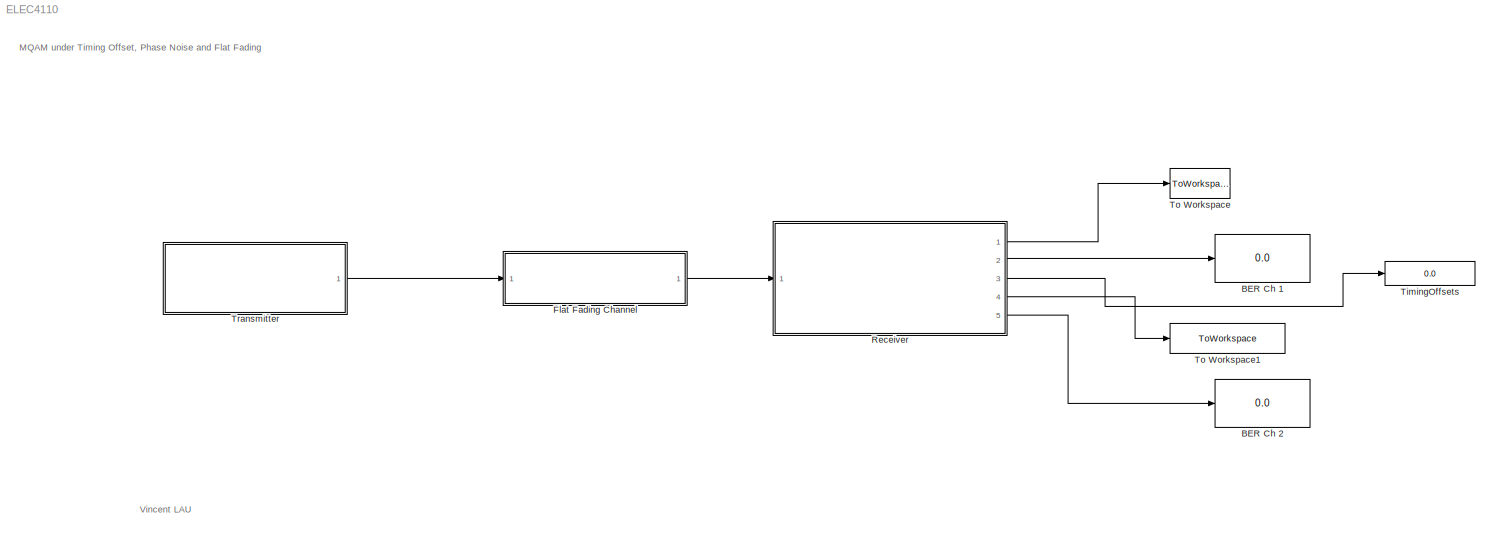
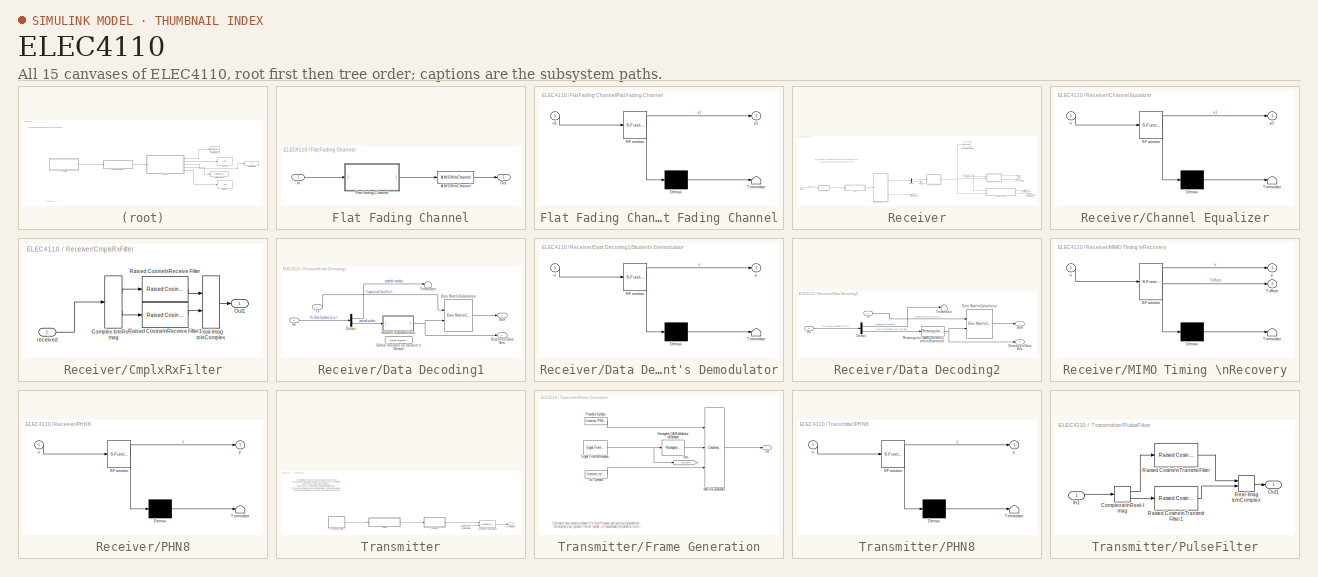
[diagram: thumbnail index - all 15 canvases of the model, root first then tree order]
MODEL ELEC4110
KIND model
CONFIG InitFcn = %qpsktxrx = commqpsktxrx_init();\nELEC4110_Init;
CONFIG PreLoadFcn = qpsktxrx = commqpsktxrx_init();
BLOCK [Display] BER Ch 1
  Decimation = 1
  Ports = [1]
  SID = 3471
BLOCK [Display] BER Ch 2
  Decimation = 1
  Ports = [1]
  SID = 3812
BLOCK [SubSystem] Flat Fading Channel
  Ports = [1, 1]
  RequestExecContextInheritance = off
  SID = 143
BLOCK [Reference] Flat Fading Channel/AWGN\nChannel  REF=commchan3/AWGN\nChannel
  EbNodB = 10
  EsNodB = 10
  InputProcessing = Columns as channels (frame based)
  Ports = [1, 1]
  Ps = 1
  RTWMemSecDataConstants = Inherit from model
  RTWMemSecDataInternal = Inherit from model
  RTWMemSecDataParameters = Inherit from model
  RTWMemSecFuncExecute = Inherit from model
  RTWMemSecFuncInitTerm = Inherit from model
  SID = 2214
  SNRdB = RxSNRdB
  SourceBlock = commchan3/AWGN\nChannel
  SourceProductBaseCode = CM
  SourceType = AWGN Channel
  Tsym = 1
  UserData = DataTag0
  UserDataPersistent = on
  bitsPerSym = 1
  noiseMode = Signal to noise ratio  (SNR)
  seed = 67
  variance = 1
BLOCK [SubSystem] Flat Fading Channel/Flat Fading Channel
  ErrorFcn = Stateflow.Translate.translate
  PermitHierarchicalResolution = ExplicitOnly
  Ports = [1, 1]
  RequestExecContextInheritance = off
  SFBlockType = MATLAB Function
  SID = 1963
  TreatAsAtomicUnit = on
BLOCK [Demux] Flat Fading Channel/Flat Fading Channel/ Demux 
  Outputs = 1
  Ports = [1, 1]
  SID = 1963::42
BLOCK [S-Function] Flat Fading Channel/Flat Fading Channel/ SFunction 
  EnableBusSupport = on
  FunctionName = sf_sfun
  Parameters = H_static
  PortCounts = [1 2]
  Ports = [1, 2]
  SFcnIsStateOwnerBlock = off
  SFunctionDeploymentMode = off
  SID = 1963::41
  Tag = Stateflow S-Function 11
BLOCK [Terminator] Flat Fading Channel/Flat Fading Channel/ Terminator 
  SID = 1963::43
BLOCK [Inport] Flat Fading Channel/Flat Fading Channel/u1
  SID = 1963::1
BLOCK [Outport] Flat Fading Channel/Flat Fading Channel/y1
  SID = 1963::5
  VectorParamsAs1DForOutWhenUnconnected = off
BLOCK [Inport] Flat Fading Channel/In
  SID = 145
BLOCK [Outport] Flat Fading Channel/Out
  SID = 144
  VectorParamsAs1DForOutWhenUnconnected = off
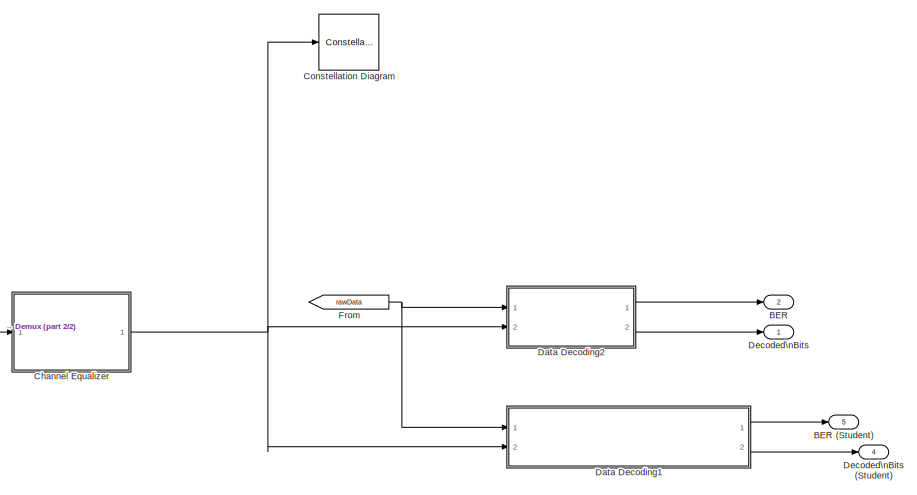
[diagram: Receiver - part 1/2, right side, full height]
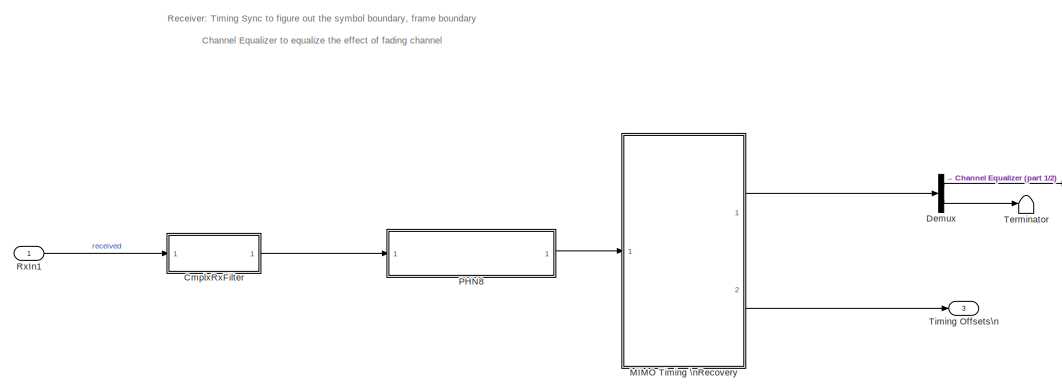
[diagram: Receiver - part 2/2, middle left region]
BLOCK [SubSystem] Receiver
  Ports = [1, 5]
  RequestExecContextInheritance = off
  SID = 1294
  ShowPortLabels = FromPortBlockName
BLOCK [Outport] Receiver/BER
  Port = 2
  SID = 3462
  VectorParamsAs1DForOutWhenUnconnected = off
BLOCK [Outport] Receiver/BER (Student)
  Port = 5
  SID = 3809
  VectorParamsAs1DForOutWhenUnconnected = off
BLOCK [SubSystem] Receiver/Channel Equalizer
  ErrorFcn = Stateflow.Translate.translate
  PermitHierarchicalResolution = ExplicitOnly
  Ports = [1, 1]
  RequestExecContextInheritance = off
  SFBlockType = MATLAB Function
  SID = 2020
  TreatAsAtomicUnit = on
BLOCK [Demux] Receiver/Channel Equalizer/ Demux 
  Outputs = 1
  Ports = [1, 1]
  SID = 2020::42
BLOCK [S-Function] Receiver/Channel Equalizer/ SFunction 
  EnableBusSupport = on
  FunctionName = sf_sfun
  Parameters = H_CSIR,PreambleSize
  PortCounts = [1 2]
  Ports = [1, 2]
  SFcnIsStateOwnerBlock = off
  SFunctionDeploymentMode = off
  SID = 2020::41
  Tag = Stateflow S-Function 20
BLOCK [Terminator] Receiver/Channel Equalizer/ Terminator 
  SID = 2020::43
BLOCK [Inport] Receiver/Channel Equalizer/u
  SID = 2020::1
BLOCK [Outport] Receiver/Channel Equalizer/y1
  SID = 2020::5
  VectorParamsAs1DForOutWhenUnconnected = off
BLOCK [SubSystem] Receiver/CmplxRxFilter
  Ports = [1, 1]
  RequestExecContextInheritance = off
  SID = 2222
BLOCK [ComplexToRealImag] Receiver/CmplxRxFilter/Complex to\nReal-Imag
  Ports = [1, 2]
  SID = 2217
BLOCK [Outport] Receiver/CmplxRxFilter/Out1
  SID = 2224
  VectorParamsAs1DForOutWhenUnconnected = off
BLOCK [Reference] Receiver/CmplxRxFilter/Raised Cosine\nReceive Filter  REF=commfilt2/Raised Cosine\nReceive Filter
  D = 5
  InputProcessing = Columns as channels (frame based)
  LockScale = off
  N = losmimo.Upsampling
  Ports = [1, 1]
  R = losmimo.RolloffFactor
  RTWMemSecDataConstants = Inherit from model
  RTWMemSecDataInternal = Inherit from model
  RTWMemSecDataParameters = Inherit from model
  RTWMemSecFuncExecute = Inherit from model
  RTWMemSecFuncInitTerm = Inherit from model
  RateOptions = Enforce single-rate processing
  SID = 2277
  SourceBlock = commfilt2/Raised Cosine\nReceive Filter
  SourceProductBaseCode = CM
  SourceType = Raised Cosine Receive Filter
  UserData = DataTag1
  UserDataPersistent = on
  accumDataTypeStr = Inherit: Same as product output
  accumFracLength = 30
  accumLastDataTypeStr = Inherit: Same as product output
  accumMode = Same as product output
  accumWordLength = 32
  checkCoeff = off
  checkGain = Normalized
  coeffDataTypeStr = Inherit: Same word length as input
  coeffFracLength = 15
  coeffLastDataTypeStr = Inherit: Same word length as input
  coeffMax = []
  coeffMin = []
  coeffMode = Same word length as input
  coeffWordLength = 16
  currentFiltSpan = 10
  downFactor = losmimo.Decimation
  downOffset = 0
  filtSpan = losmimo.RaisedCosineFilterSpan
  filtType = Square root
  filterGain = 1
  framing = Mute
  inputOffset = 0
  launchFVT = on
  outputDataTypeStr = Inherit: Same as accumulator
  outputFracLength = 15
  outputLastDataTypeStr = Inherit: Same as accumulator
  outputMax = []
  outputMin = []
  outputMode = Same as accumulator
  outputWordLength = 16
  overflowMode = off
  prodOutputDataTypeStr = Inherit: Same as input
  prodOutputFracLength = 30
  prodOutputLastDataTypeStr = Inherit: Same as input
  prodOutputMode = Same as input
  prodOutputWordLength = 32
  rateMode = Downsampling
  roundingMode = Floor
  sampMode = Mute
  saveAsFlag = 0
  variableName = rcRxFilt
BLOCK [Reference] Receiver/CmplxRxFilter/Raised Cosine\nReceive Filter1  REF=commfilt2/Raised Cosine\nReceive Filter
  D = 5
  InputProcessing = Columns as channels (frame based)
  LockScale = off
  N = losmimo.Upsampling
  Ports = [1, 1]
  R = losmimo.RolloffFactor
  RTWMemSecDataConstants = Inherit from model
  RTWMemSecDataInternal = Inherit from model
  RTWMemSecDataParameters = Inherit from model
  RTWMemSecFuncExecute = Inherit from model
  RTWMemSecFuncInitTerm = Inherit from model
  RateOptions = Enforce single-rate processing
  SID = 3001
  SourceBlock = commfilt2/Raised Cosine\nReceive Filter
  SourceProductBaseCode = CM
  SourceType = Raised Cosine Receive Filter
  UserData = DataTag2
  UserDataPersistent = on
  accumDataTypeStr = Inherit: Same as product output
  accumFracLength = 30
  accumLastDataTypeStr = Inherit: Same as product output
  accumMode = Same as product output
  accumWordLength = 32
  checkCoeff = off
  checkGain = Normalized
  coeffDataTypeStr = Inherit: Same word length as input
  coeffFracLength = 15
  coeffLastDataTypeStr = Inherit: Same word length as input
  coeffMax = []
  coeffMin = []
  coeffMode = Same word length as input
  coeffWordLength = 16
  currentFiltSpan = 10
  downFactor = losmimo.Decimation
  downOffset = 0
  filtSpan = losmimo.RaisedCosineFilterSpan
  filtType = Square root
  filterGain = 1
  framing = Mute
  inputOffset = 0
  launchFVT = on
  outputDataTypeStr = Inherit: Same as accumulator
  outputFracLength = 15
  outputLastDataTypeStr = Inherit: Same as accumulator
  outputMax = []
  outputMin = []
  outputMode = Same as accumulator
  outputWordLength = 16
  overflowMode = off
  prodOutputDataTypeStr = Inherit: Same as input
  prodOutputFracLength = 30
  prodOutputLastDataTypeStr = Inherit: Same as input
  prodOutputMode = Same as input
  prodOutputWordLength = 32
  rateMode = Downsampling
  roundingMode = Floor
  sampMode = Mute
  saveAsFlag = 0
  variableName = rcRxFilt1
BLOCK [RealImagToComplex] Receiver/CmplxRxFilter/Real-Imag to\nComplex
  Ports = [2, 1]
  SID = 2218
BLOCK [Inport] Receiver/CmplxRxFilter/received
  SID = 2223
BLOCK [ConstellationDiagram] Receiver/Constellation Diagram
  Ports = [1]
  SID = 3796
  ScopeSpecificationString = comm.scopes.ConstellationDiagramBlockCfg('CurrentConfiguration', extmgr.ConfigurationSet(extmgr.Configuration('Core','General UI',true),extmgr.Configuration('Core','Source UI',true),extmgr.Configuration('Sources','WiredSimulink',true),extmgr.Configuration('Sources','SPTool',false),extmgr.Configuration('Sources','File',false),extmgr.Configuration('Sources','Workspace',false),extmgr.Configuration('S...<+2307ch>
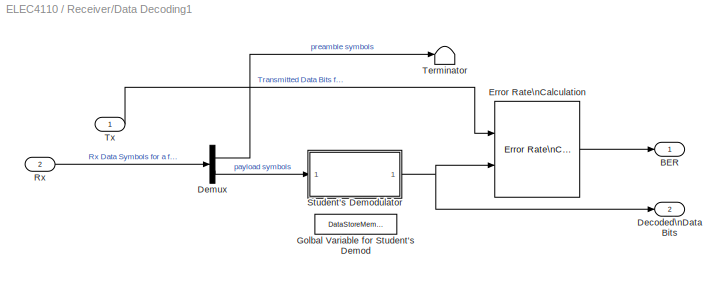
BLOCK [SubSystem] Receiver/Data Decoding1
  NameLocation = top
  Ports = [2, 2]
  RequestExecContextInheritance = off
  SID = 3799
BLOCK [Outport] Receiver/Data Decoding1/BER
  SID = 3806
  VectorParamsAs1DForOutWhenUnconnected = off
BLOCK [Outport] Receiver/Data Decoding1/Decoded\nData Bits
  Port = 2
  SID = 3807
  VectorParamsAs1DForOutWhenUnconnected = off
BLOCK [Demux] Receiver/Data Decoding1/Demux
  Outputs = [[PreambleSize -1]]
  Ports = [1, 2]
  SID = 3802
BLOCK [Reference] Receiver/Data Decoding1/Error Rate\nCalculation  REF=commsink2/Error Rate\nCalculation
  MultiThreadCoSim = auto
  N = 0
  PMode = Port
  Ports = [2, 1]
  RsMode2 = off
  SID = 3803
  SourceBlock = commsink2/Error Rate\nCalculation
  SourceProductBaseCode = CM
  SourceType = Error Rate Calculation
  WsName = ErrorVec
  cp_mode = Entire frame
  maxBits = 1e6
  numErr = 100
  st_delay = 0
  stop = off
  subframe = []
BLOCK [DataStoreMemory] Receiver/Data Decoding1/Golbal Variable for Student's Demod
  DataStoreName = M_level
  OutDataTypeStr = int16
  ReadBeforeWriteMsg = warning
  SID = 3814
  ShowAdditionalParam = off
  SignalType = real
  WriteAfterReadMsg = warning
  WriteAfterWriteMsg = warning
BLOCK [Inport] Receiver/Data Decoding1/Rx
  Port = 2
  SID = 3801
BLOCK [SubSystem] Receiver/Data Decoding1/Student's Demodulator
  ErrorFcn = Stateflow.Translate.translate
  PermitHierarchicalResolution = ExplicitOnly
  Ports = [1, 1]
  RequestExecContextInheritance = off
  SFBlockType = MATLAB Function
  SID = 3810
  TreatAsAtomicUnit = on
BLOCK [Demux] Receiver/Data Decoding1/Student's Demodulator/ Demux 
  Outputs = 1
  Ports = [1, 1]
  SID = 3810::26
BLOCK [S-Function] Receiver/Data Decoding1/Student's Demodulator/ SFunction 
  EnableBusSupport = on
  FunctionName = sf_sfun
  PortCounts = [1 2]
  Ports = [1, 2]
  SFcnIsStateOwnerBlock = off
  SFunctionDeploymentMode = off
  SID = 3810::25
  Tag = Stateflow S-Function 2
BLOCK [Terminator] Receiver/Data Decoding1/Student's Demodulator/ Terminator 
  SID = 3810::27
BLOCK [Inport] Receiver/Data Decoding1/Student's Demodulator/u
  SID = 3810::1
BLOCK [Outport] Receiver/Data Decoding1/Student's Demodulator/y
  SID = 3810::5
  VectorParamsAs1DForOutWhenUnconnected = off
BLOCK [Terminator] Receiver/Data Decoding1/Terminator
  SID = 3805
BLOCK [Inport] Receiver/Data Decoding1/Tx
  SID = 3800
BLOCK [SubSystem] Receiver/Data Decoding2
  NameLocation = top
  Ports = [2, 2]
  RequestExecContextInheritance = off
  SID = 3618
BLOCK [Outport] Receiver/Data Decoding2/BER
  SID = 3624
  VectorParamsAs1DForOutWhenUnconnected = off
BLOCK [Outport] Receiver/Data Decoding2/Decoded\nData Bits
  Port = 2
  SID = 3625
  VectorParamsAs1DForOutWhenUnconnected = off
BLOCK [Demux] Receiver/Data Decoding2/Demux
  Outputs = [[PreambleSize -1]]
  Ports = [1, 2]
  SID = 3659
BLOCK [Reference] Receiver/Data Decoding2/Error Rate\nCalculation  REF=commsink2/Error Rate\nCalculation
  MultiThreadCoSim = auto
  N = 0
  PMode = Port
  Ports = [2, 1]
  RsMode2 = off
  SID = 3622
  SourceBlock = commsink2/Error Rate\nCalculation
  SourceProductBaseCode = CM
  SourceType = Error Rate Calculation
  WsName = ErrorVec
  cp_mode = Entire frame
  maxBits = 1e6
  numErr = 100
  st_delay = 0
  stop = off
  subframe = []
BLOCK [Reference] Receiver/Data Decoding2/Rectangular QAM\nDemodulator\nBaseband  REF=commdigbbndam3/Rectangular QAM\nDemodulator\nBaseband
  AvgPow = 1
  Dec = Gray
  DecType = Hard decision
  M = losmimo.M
  Mapping = [0:15]
  MinDist = 2
  MultiThreadCoSim = auto
  OutType = Bit
  PeakPow = 1
  Ph = 0
  Ports = [1, 1]
  PowType = Average Power
  SID = 3623
  SourceBlock = commdigbbndam3/Rectangular QAM\nDemodulator\nBaseband
  SourceProductBaseCode = CM
  SourceType = Rectangular QAM Demodulator Baseband
  VarSource = Dialog
  Variance = 1
  denormFactorDTMode = Same word length as input
  denormFactorDataTypeStr = Inherit: Same word length as input
  denormFactorLastDataTypeStr = Inherit: Same word length as input
  denormFactorWordLen = 16
  derotateFactorDTMode = Same word length as input
  derotateFactorDataTypeStr = Inherit: Same word length as input
  derotateFactorLastDataTypeStr = Inherit: Same word length as input
  derotateFactorWordLen = 16
  outDtype1 = Inherit via internal rule
  outDtype2 = Inherit via internal rule
  prodOutDTMode = Inherit via internal rule
  prodOutDataTypeStr = Inherit: Inherit via internal rule
  prodOutLastDataTypeStr = Inherit: Inherit via internal rule
  prodOutOvFlMode = off
  prodOutOvFlModeLastStrValue = off
  prodOutOverflowMode = Wrap
  prodOutRoundingMode = Floor
  prodOutWordLen = 32
  sumDTMode = Inherit via internal rule
  sumDataTypeStr = Inherit: Inherit via internal rule
  sumLastDataTypeStr = Inherit: Inherit via internal rule
  sumWordLen = 32
BLOCK [Inport] Receiver/Data Decoding2/Rx
  Port = 2
  SID = 3620
BLOCK [Terminator] Receiver/Data Decoding2/Terminator
  SID = 3660
BLOCK [Inport] Receiver/Data Decoding2/Tx
  SID = 3619
BLOCK [Outport] Receiver/Decoded\nBits
  SID = 2646
  VectorParamsAs1DForOutWhenUnconnected = off
BLOCK [Outport] Receiver/Decoded\nBits (Student)
  Port = 4
  SID = 3808
  VectorParamsAs1DForOutWhenUnconnected = off
BLOCK [Demux] Receiver/Demux
  Outputs = [TotalDataPreambleSize -1]
  Ports = [1, 2]
  SID = 3658
BLOCK [From] Receiver/From
  GotoTag = rawData
  SID = 2919
  TagVisibility = global
BLOCK [SubSystem] Receiver/MIMO Timing \nRecovery
  ErrorFcn = Stateflow.Translate.translate
  PermitHierarchicalResolution = ExplicitOnly
  Ports = [1, 2]
  RequestExecContextInheritance = off
  SFBlockType = MATLAB Function
  SID = 3542
  TreatAsAtomicUnit = on
BLOCK [Demux] Receiver/MIMO Timing \nRecovery/ Demux 
  Outputs = 1
  Ports = [1, 1]
  SID = 3542::47
BLOCK [S-Function] Receiver/MIMO Timing \nRecovery/ SFunction 
  EnableBusSupport = on
  FunctionName = sf_sfun
  Parameters = TotalDataPreambleSize,TxPreamble,maxTOffset,numInterpRx,numSampPerSym
  PortCounts = [1 3]
  Ports = [1, 3]
  SFcnIsStateOwnerBlock = off
  SFunctionDeploymentMode = off
  SID = 3542::46
  Tag = Stateflow S-Function 21
BLOCK [Terminator] Receiver/MIMO Timing \nRecovery/ Terminator 
  SID = 3542::48
BLOCK [Outport] Receiver/MIMO Timing \nRecovery/Toffset
  Port = 2
  SID = 3542::43
  VectorParamsAs1DForOutWhenUnconnected = off
BLOCK [Inport] Receiver/MIMO Timing \nRecovery/u
  SID = 3542::1
BLOCK [Outport] Receiver/MIMO Timing \nRecovery/y
  SID = 3542::5
  VectorParamsAs1DForOutWhenUnconnected = off
BLOCK [SubSystem] Receiver/PHN8
  ErrorFcn = Stateflow.Translate.translate
  PermitHierarchicalResolution = ExplicitOnly
  Ports = [1, 1]
  RequestExecContextInheritance = off
  SFBlockType = MATLAB Function
  SID = 2512
  TreatAsAtomicUnit = on
BLOCK [Demux] Receiver/PHN8/ Demux 
  Outputs = 1
  Ports = [1, 1]
  SID = 2512::27
BLOCK [S-Function] Receiver/PHN8/ SFunction 
  EnableBusSupport = on
  FunctionName = sf_sfun
  Parameters = sigma_PHN
  PortCounts = [1 2]
  Ports = [1, 2]
  SFcnIsStateOwnerBlock = off
  SFunctionDeploymentMode = off
  SID = 2512::26
  Tag = Stateflow S-Function 10
BLOCK [Terminator] Receiver/PHN8/ Terminator 
  SID = 2512::28
BLOCK [Inport] Receiver/PHN8/u
  SID = 2512::1
BLOCK [Outport] Receiver/PHN8/y
  SID = 2512::5
  VectorParamsAs1DForOutWhenUnconnected = off
BLOCK [Inport] Receiver/RxIn1
  SID = 1311
BLOCK [Terminator] Receiver/Terminator
  SID = 3731
BLOCK [Outport] Receiver/Timing Offsets\n
  Port = 3
  SID = 3797
  VectorParamsAs1DForOutWhenUnconnected = off
BLOCK [Display] TimingOffsets
  Decimation = 1
  Ports = [1]
  SID = 3798
BLOCK [ToWorkspace] To Workspace
  FixptAsFi = on
  MaxDataPoints = inf
  Ports = [1]
  SID = 3476
  SampleTime = -1
  SaveFormat = Structure
  VariableName = rxBits
BLOCK [ToWorkspace] To Workspace1
  FixptAsFi = on
  MaxDataPoints = inf
  Ports = [1]
  SID = 3811
  SampleTime = -1
  SaveFormat = Structure
  VariableName = rxBits_student
BLOCK [SubSystem] Transmitter
  Ports = [0, 1]
  RequestExecContextInheritance = off
  SID = 1291
BLOCK [SubSystem] Transmitter/Frame Generation
  Ports = [0, 1]
  RequestExecContextInheritance = off
  SID = 2054
BLOCK [Goto] Transmitter/Frame Generation/Goto
  GotoTag = rawData
  SID = 2920
  TagVisibility = global
BLOCK [Concatenate] Transmitter/Frame Generation/Matrix\nConcatenate
  Mode = Multidimensional array
  NumInputs = 3
  Ports = [3, 1]
  SID = 2058
BLOCK [Outport] Transmitter/Frame Generation/Out
  SID = 2062
  VectorParamsAs1DForOutWhenUnconnected = off
BLOCK [Constant] Transmitter/Frame Generation/Preamble Symbols
  OutDataTypeStr = double
  SID = 3484
  Value = losmimo.PNSymbols.'
  VectorParams1D = off
BLOCK [Reference] Transmitter/Frame Generation/Rectangular QAM\nModulator\nBaseband  REF=commdigbbndam3/Rectangular QAM\nModulator\nBaseband
  AvgPow = 1
  Enc = Gray
  InType = Bit
  M = losmimo.M
  Mapping = [0:15]
  MinDist = 2
  MultiThreadCoSim = auto
  PeakPow = 1
  Ph = 0
  Ports = [1, 1]
  PowType = Average Power
  SID = 3054
  SourceBlock = commdigbbndam3/Rectangular QAM\nModulator\nBaseband
  SourceProductBaseCode = CM
  SourceType = Rectangular QAM Modulator Baseband
  outDataTypeStr = double
  outDtype = double
  outFracLen = 15
  outFracLenMode = Best precision
  outLastDataTypeStr = double
  outUDDataType = sfix(16)
  outWordLen = 16
BLOCK [Reference] Transmitter/Frame Generation/Signal From\nWorkspace  REF=dspsrcs4/Signal From\nWorkspace
  OutputAfterFinalValue = Cyclic repetition
  OutputFrames = off
  Ports = [0, 1]
  RTWMemSecDataConstants = Inherit from model
  RTWMemSecDataInternal = Inherit from model
  RTWMemSecDataParameters = Inherit from model
  RTWMemSecFuncExecute = Inherit from model
  RTWMemSecFuncInitTerm = Inherit from model
  SID = 2061
  SourceBlock = dspsrcs4/Signal From\nWorkspace
  SourceProductBaseCode = DS
  SourceType = Signal From Workspace
  Ts = 1/losmimo.DataLength*losmimo.FrameTime
  X = losmimo.sBit
  ignoreOrWarnInputAndFrameLengths = off
  nsamps = losmimo.DataLength
BLOCK [Constant] Transmitter/Frame Generation/Tail Symbols
  OutDataTypeStr = double
  SID = 3732
  Value = losmimo.tailSym'
  VectorParams1D = off
BLOCK [SubSystem] Transmitter/PHN8
  ErrorFcn = Stateflow.Translate.translate
  PermitHierarchicalResolution = ExplicitOnly
  Ports = [1, 1]
  RequestExecContextInheritance = off
  SFBlockType = MATLAB Function
  SID = 2656
  TreatAsAtomicUnit = on
BLOCK [Demux] Transmitter/PHN8/ Demux 
  Outputs = 1
  Ports = [1, 1]
  SID = 2656::27
BLOCK [S-Function] Transmitter/PHN8/ SFunction 
  EnableBusSupport = on
  FunctionName = sf_sfun
  Parameters = sigma_PHN
  PortCounts = [1 2]
  Ports = [1, 2]
  SFcnIsStateOwnerBlock = off
  SFunctionDeploymentMode = off
  SID = 2656::26
  Tag = Stateflow S-Function 3
BLOCK [Terminator] Transmitter/PHN8/ Terminator 
  SID = 2656::28
BLOCK [Inport] Transmitter/PHN8/u
  SID = 2656::1
BLOCK [Outport] Transmitter/PHN8/y
  SID = 2656::5
  VectorParamsAs1DForOutWhenUnconnected = off
BLOCK [SubSystem] Transmitter/PulseFilter
  Ports = [1, 1]
  RequestExecContextInheritance = off
  SID = 2161
BLOCK [ComplexToRealImag] Transmitter/PulseFilter/Complex to\nReal-Imag
  Ports = [1, 2]
  SID = 2158
BLOCK [Inport] Transmitter/PulseFilter/In1
  SID = 2162
BLOCK [Outport] Transmitter/PulseFilter/Out1
  SID = 2163
  VectorParamsAs1DForOutWhenUnconnected = off
BLOCK [Reference] Transmitter/PulseFilter/Raised Cosine\nTransmit Filter  REF=commfilt2/Raised Cosine\nTransmit Filter
  D = 5
  InputProcessing = Columns as channels (frame based)
  LockScale = off
  N = losmimo.Upsampling
  Ports = [1, 1]
  R = losmimo.RolloffFactor
  RTWMemSecDataConstants = Inherit from model
  RTWMemSecDataInternal = Inherit from model
  RTWMemSecDataParameters = Inherit from model
  RTWMemSecFuncExecute = Inherit from model
  RTWMemSecFuncInitTerm = Inherit from model
  RateOptions = Enforce single-rate processing
  SID = 2657
  SourceBlock = commfilt2/Raised Cosine\nTransmit Filter
  SourceProductBaseCode = CM
  SourceType = Raised Cosine Transmit Filter
  UserData = DataTag3
  UserDataPersistent = on
  accumDataTypeStr = Inherit: Inherit via internal rule
  accumFracLength = 30
  accumLastDataTypeStr = Inherit: Inherit via internal rule
  accumMode = Inherit via internal rule
  accumWordLength = 32
  checkCoeff = off
  checkGain = Normalized
  coeffDataTypeStr = Inherit: Same word length as input
  coeffFracLength = 15
  coeffLastDataTypeStr = Inherit: Same word length as input
  coeffMax = []
  coeffMin = []
  coeffMode = Same word length as input
  coeffWordLength = 16
  currentFiltSpan = 10
  filtSpan = losmimo.RaisedCosineFilterSpan
  filtType = Square root
  filterGain = 1
  framing = Mute
  launchFVT = on
  outputDataTypeStr = Inherit: Same as accumulator
  outputFracLength = 15
  outputLastDataTypeStr = Inherit: Same as accumulator
  outputMax = []
  outputMin = []
  outputMode = Same as accumulator
  outputWordLength = 16
  overflowMode = off
  prodOutputDataTypeStr = Inherit: Inherit via internal rule
  prodOutputFracLength = 30
  prodOutputLastDataTypeStr = Inherit: Inherit via internal rule
  prodOutputMode = Inherit via internal rule
  prodOutputWordLength = 32
  roundingMode = Floor
  sampMode = Mute
  saveAsFlag = 0
  variableName = rcTxFilt1
BLOCK [Reference] Transmitter/PulseFilter/Raised Cosine\nTransmit Filter1  REF=commfilt2/Raised Cosine\nTransmit Filter
  D = 5
  InputProcessing = Columns as channels (frame based)
  LockScale = off
  N = losmimo.Upsampling
  Ports = [1, 1]
  R = losmimo.RolloffFactor
  RTWMemSecDataConstants = Inherit from model
  RTWMemSecDataInternal = Inherit from model
  RTWMemSecDataParameters = Inherit from model
  RTWMemSecFuncExecute = Inherit from model
  RTWMemSecFuncInitTerm = Inherit from model
  RateOptions = Enforce single-rate processing
  SID = 2709
  SourceBlock = commfilt2/Raised Cosine\nTransmit Filter
  SourceProductBaseCode = CM
  SourceType = Raised Cosine Transmit Filter
  UserData = DataTag4
  UserDataPersistent = on
  accumDataTypeStr = Inherit: Inherit via internal rule
  accumFracLength = 30
  accumLastDataTypeStr = Inherit: Inherit via internal rule
  accumMode = Inherit via internal rule
  accumWordLength = 32
  checkCoeff = off
  checkGain = Normalized
  coeffDataTypeStr = Inherit: Same word length as input
  coeffFracLength = 15
  coeffLastDataTypeStr = Inherit: Same word length as input
  coeffMax = []
  coeffMin = []
  coeffMode = Same word length as input
  coeffWordLength = 16
  currentFiltSpan = 10
  filtSpan = losmimo.RaisedCosineFilterSpan
  filtType = Square root
  filterGain = 1
  framing = Mute
  launchFVT = on
  outputDataTypeStr = Inherit: Same as accumulator
  outputFracLength = 15
  outputLastDataTypeStr = Inherit: Same as accumulator
  outputMax = []
  outputMin = []
  outputMode = Same as accumulator
  outputWordLength = 16
  overflowMode = off
  prodOutputDataTypeStr = Inherit: Inherit via internal rule
  prodOutputFracLength = 30
  prodOutputLastDataTypeStr = Inherit: Inherit via internal rule
  prodOutputMode = Inherit via internal rule
  prodOutputWordLength = 32
  roundingMode = Floor
  sampMode = Mute
  saveAsFlag = 0
  variableName = rcTxFilt1
BLOCK [RealImagToComplex] Transmitter/PulseFilter/Real-Imag to\nComplex
  Ports = [2, 1]
  SID = 2160
BLOCK [Outport] Transmitter/Tx Ant Output1
  NameLocation = top
  SID = 1436
  VectorParamsAs1DForOutWhenUnconnected = off
BLOCK [Constant] Transmitter/Tx Timing Offset8
  SID = 3474
  Value = losmimo.TxTimingOffset(1)
BLOCK [Reference] Transmitter/Variable\nFractional Delay8  REF=dspsigops/Variable\nFractional Delay
  FarrowL = 3
  InputProcessing = Columns as channels (frame based)
  L = 4
  LockScale = off
  MultiThreadCoSim = auto
  Ports = [2, 1]
  R = 50
  SID = 3475
  SourceBlock = dspsigops/Variable\nFractional Delay
  SourceProductBaseCode = DS
  SourceType = Variable Fractional Delay
  UserData = DataTag5
  UserDataPersistent = on
  accumFracLength = 10
  accumMode = Same as product output
  accumWordLength = 32
  alpha = 1
  dmax = 20
  fallbackFIR = Clip to the minimum value necessary for centered kernel
  fallbackFarrow = Clip to the minimum value necessary for centered kernel
  firstCoeffFracLength = 0
  firstCoeffMode = Same word length as input
  firstCoeffWordLength = 32
  ic = 0
  interProdFracLength = 10
  interProdMode = Same as first input
  interProdWordLength = 32
  memoryFracLength = 10
  memoryMode = Same as first input
  memoryWordLength = 32
  mode = OBSOLETE
  modeActive = Farrow
  noDFT = off
  outputFracLength = 10
  outputMode = Same as accumulator
  outputWordLength = 32
  overflowMode = off
  prodOutputFracLength = 10
  prodOutputMode = Same as first input
  prodOutputWordLength = 32
  roundingMode = Zero
  secondCoeffFracLength = 10
  secondCoeffMode = Same as first input
  secondCoeffWordLength = 32
ANNOTATION (root): \n \n Vincent LAU
ANNOTATION (root): MQAM under Timing Offset, Phase Noise and Flat Fading
ANNOTATION Receiver: \n \n Receiver: Timing Sync to figure out the symbol boundary, frame boundary \n Channel Equalizer to equalize the effect of fading channel \n Data Decoding --> perform demodulation and compute BER
ANNOTATION Transmitter: Transmitter: It generates one frame each time. A frame consists of\n a preamble (length defined by losmimo.SeqLength) for synchronization +\n data symbols (length = DataFrameSize) + \nTail symbols (for continuity of the frame in modeling time delays) \nThe frame of symbols is then mapped into modulation symbols via the pulse filter (up converted to samples). \nFinally, we add in artifical delays (...<+67ch>
ANNOTATION Transmitter/Frame Generation: Each data frame contains a header (For Sync Purpose) and losmimo.DataLength bits data bits, \nfollowed by a tail symbols The tail symbol is to accomodate the potential timing offset at the Tx and Rx filters
LINE Flat Fading Channel/AWGN\nChannel:1 -> Flat Fading Channel/Out:1
LINE Flat Fading Channel/Flat Fading Channel/ Demux :1 -> Flat Fading Channel/Flat Fading Channel/ Terminator :1
LINE Flat Fading Channel/Flat Fading Channel/ SFunction :1 -> Flat Fading Channel/Flat Fading Channel/ Demux :1
LINE Flat Fading Channel/Flat Fading Channel/ SFunction :2 -> Flat Fading Channel/Flat Fading Channel/y1:1
LINE Flat Fading Channel/Flat Fading Channel/u1:1 -> Flat Fading Channel/Flat Fading Channel/ SFunction :1
LINE Flat Fading Channel/Flat Fading Channel:1 -> Flat Fading Channel/AWGN\nChannel:1
LINE Flat Fading Channel/In:1 -> Flat Fading Channel/Flat Fading Channel:1
LINE Flat Fading Channel:1 -> Receiver:1
LINE Receiver/Channel Equalizer/ Demux :1 -> Receiver/Channel Equalizer/ Terminator :1
LINE Receiver/Channel Equalizer/ SFunction :1 -> Receiver/Channel Equalizer/ Demux :1
LINE Receiver/Channel Equalizer/ SFunction :2 -> Receiver/Channel Equalizer/y1:1
LINE Receiver/Channel Equalizer/u:1 -> Receiver/Channel Equalizer/ SFunction :1
NET Receiver/Channel Equalizer:1 -> Receiver/Constellation Diagram:1, Receiver/Data Decoding1:2, Receiver/Data Decoding2:2
LINE Receiver/CmplxRxFilter/Complex to\nReal-Imag:1 -> Receiver/CmplxRxFilter/Raised Cosine\nReceive Filter:1
LINE Receiver/CmplxRxFilter/Complex to\nReal-Imag:2 -> Receiver/CmplxRxFilter/Raised Cosine\nReceive Filter1:1
LINE Receiver/CmplxRxFilter/Raised Cosine\nReceive Filter1:1 -> Receiver/CmplxRxFilter/Real-Imag to\nComplex:2
LINE Receiver/CmplxRxFilter/Raised Cosine\nReceive Filter:1 -> Receiver/CmplxRxFilter/Real-Imag to\nComplex:1
LINE Receiver/CmplxRxFilter/Real-Imag to\nComplex:1 -> Receiver/CmplxRxFilter/Out1:1
LINE Receiver/CmplxRxFilter/received:1 -> Receiver/CmplxRxFilter/Complex to\nReal-Imag:1
LINE Receiver/CmplxRxFilter:1 -> Receiver/PHN8:1
LINE Receiver/Data Decoding1/Demux:1 -> Receiver/Data Decoding1/Terminator:1
LINE Receiver/Data Decoding1/Demux:2 -> Receiver/Data Decoding1/Student's Demodulator:1
LINE Receiver/Data Decoding1/Error Rate\nCalculation:1 -> Receiver/Data Decoding1/BER:1
LINE Receiver/Data Decoding1/Rx:1 -> Receiver/Data Decoding1/Demux:1
LINE Receiver/Data Decoding1/Student's Demodulator/ Demux :1 -> Receiver/Data Decoding1/Student's Demodulator/ Terminator :1
LINE Receiver/Data Decoding1/Student's Demodulator/ SFunction :1 -> Receiver/Data Decoding1/Student's Demodulator/ Demux :1
LINE Receiver/Data Decoding1/Student's Demodulator/ SFunction :2 -> Receiver/Data Decoding1/Student's Demodulator/y:1
LINE Receiver/Data Decoding1/Student's Demodulator/u:1 -> Receiver/Data Decoding1/Student's Demodulator/ SFunction :1
NET Receiver/Data Decoding1/Student's Demodulator:1 -> Receiver/Data Decoding1/Decoded\nData Bits:1, Receiver/Data Decoding1/Error Rate\nCalculation:2
LINE Receiver/Data Decoding1/Tx:1 -> Receiver/Data Decoding1/Error Rate\nCalculation:1
LINE Receiver/Data Decoding1:1 -> Receiver/BER (Student):1
LINE Receiver/Data Decoding1:2 -> Receiver/Decoded\nBits (Student):1
LINE Receiver/Data Decoding2/Demux:1 -> Receiver/Data Decoding2/Terminator:1
LINE Receiver/Data Decoding2/Demux:2 -> Receiver/Data Decoding2/Rectangular QAM\nDemodulator\nBaseband:1
LINE Receiver/Data Decoding2/Error Rate\nCalculation:1 -> Receiver/Data Decoding2/BER:1
NET Receiver/Data Decoding2/Rectangular QAM\nDemodulator\nBaseband:1 -> Receiver/Data Decoding2/Decoded\nData Bits:1, Receiver/Data Decoding2/Error Rate\nCalculation:2
LINE Receiver/Data Decoding2/Rx:1 -> Receiver/Data Decoding2/Demux:1
LINE Receiver/Data Decoding2/Tx:1 -> Receiver/Data Decoding2/Error Rate\nCalculation:1
LINE Receiver/Data Decoding2:1 -> Receiver/BER:1
LINE Receiver/Data Decoding2:2 -> Receiver/Decoded\nBits:1
LINE Receiver/Demux:1 -> Receiver/Channel Equalizer:1
LINE Receiver/Demux:2 -> Receiver/Terminator:1
NET Receiver/From:1 -> Receiver/Data Decoding1:1, Receiver/Data Decoding2:1
LINE Receiver/MIMO Timing \nRecovery/ Demux :1 -> Receiver/MIMO Timing \nRecovery/ Terminator :1
LINE Receiver/MIMO Timing \nRecovery/ SFunction :1 -> Receiver/MIMO Timing \nRecovery/ Demux :1
LINE Receiver/MIMO Timing \nRecovery/ SFunction :2 -> Receiver/MIMO Timing \nRecovery/y:1
LINE Receiver/MIMO Timing \nRecovery/ SFunction :3 -> Receiver/MIMO Timing \nRecovery/Toffset:1
LINE Receiver/MIMO Timing \nRecovery/u:1 -> Receiver/MIMO Timing \nRecovery/ SFunction :1
LINE Receiver/MIMO Timing \nRecovery:1 -> Receiver/Demux:1
LINE Receiver/MIMO Timing \nRecovery:2 -> Receiver/Timing Offsets\n:1
LINE Receiver/PHN8/ Demux :1 -> Receiver/PHN8/ Terminator :1
LINE Receiver/PHN8/ SFunction :1 -> Receiver/PHN8/ Demux :1
LINE Receiver/PHN8/ SFunction :2 -> Receiver/PHN8/y:1
LINE Receiver/PHN8/u:1 -> Receiver/PHN8/ SFunction :1
LINE Receiver/PHN8:1 -> Receiver/MIMO Timing \nRecovery:1
LINE Receiver/RxIn1:1 -> Receiver/CmplxRxFilter:1
LINE Receiver:1 -> To Workspace:1
LINE Receiver:2 -> BER Ch 1:1
LINE Receiver:3 -> TimingOffsets:1
LINE Receiver:4 -> To Workspace1:1
LINE Receiver:5 -> BER Ch 2:1
LINE Transmitter/Frame Generation/Matrix\nConcatenate:1 -> Transmitter/Frame Generation/Out:1
LINE Transmitter/Frame Generation/Preamble Symbols:1 -> Transmitter/Frame Generation/Matrix\nConcatenate:1
LINE Transmitter/Frame Generation/Rectangular QAM\nModulator\nBaseband:1 -> Transmitter/Frame Generation/Matrix\nConcatenate:2
NET Transmitter/Frame Generation/Signal From\nWorkspace:1 -> Transmitter/Frame Generation/Goto:1, Transmitter/Frame Generation/Rectangular QAM\nModulator\nBaseband:1
LINE Transmitter/Frame Generation/Tail Symbols:1 -> Transmitter/Frame Generation/Matrix\nConcatenate:3
LINE Transmitter/Frame Generation:1 -> Transmitter/PHN8:1
LINE Transmitter/PHN8/ Demux :1 -> Transmitter/PHN8/ Terminator :1
LINE Transmitter/PHN8/ SFunction :1 -> Transmitter/PHN8/ Demux :1
LINE Transmitter/PHN8/ SFunction :2 -> Transmitter/PHN8/y:1
LINE Transmitter/PHN8/u:1 -> Transmitter/PHN8/ SFunction :1
LINE Transmitter/PHN8:1 -> Transmitter/PulseFilter:1
LINE Transmitter/PulseFilter/Complex to\nReal-Imag:1 -> Transmitter/PulseFilter/Raised Cosine\nTransmit Filter:1
LINE Transmitter/PulseFilter/Complex to\nReal-Imag:2 -> Transmitter/PulseFilter/Raised Cosine\nTransmit Filter1:1
LINE Transmitter/PulseFilter/In1:1 -> Transmitter/PulseFilter/Complex to\nReal-Imag:1
LINE Transmitter/PulseFilter/Raised Cosine\nTransmit Filter1:1 -> Transmitter/PulseFilter/Real-Imag to\nComplex:2
LINE Transmitter/PulseFilter/Raised Cosine\nTransmit Filter:1 -> Transmitter/PulseFilter/Real-Imag to\nComplex:1
LINE Transmitter/PulseFilter/Real-Imag to\nComplex:1 -> Transmitter/PulseFilter/Out1:1
LINE Transmitter/PulseFilter:1 -> Transmitter/Variable\nFractional Delay8:1
LINE Transmitter/Tx Timing Offset8:1 -> Transmitter/Variable\nFractional Delay8:2
LINE Transmitter/Variable\nFractional Delay8:1 -> Transmitter/Tx Ant Output1:1
LINE Transmitter:1 -> Flat Fading Channel:1
note: NET lines group one-source signal fan-out (src -> all destinations, sorted); 1:1 wires keep LINE
CHART Receiver/Data Decoding1/Student's Demodulator states=1 transitions=1
  STATE_LABEL 'eML_blk_kernel()'
CHART Transmitter/PHN8 states=1 transitions=1
  STATE_LABEL 'eML_blk_kernel()'
CHART Receiver/PHN8 states=1 transitions=1
  STATE_LABEL 'eML_blk_kernel()'
CHART Flat Fading Channel/Flat Fading Channel states=1 transitions=1
  STATE_LABEL 'eML_blk_kernel()'
CHART Receiver/Channel Equalizer states=1 transitions=1
  STATE_LABEL 'eML_blk_kernel()'
CHART Receiver/MIMO Timing \nRecovery states=1 transitions=1
  STATE_LABEL 'eML_blk_kernel()'
